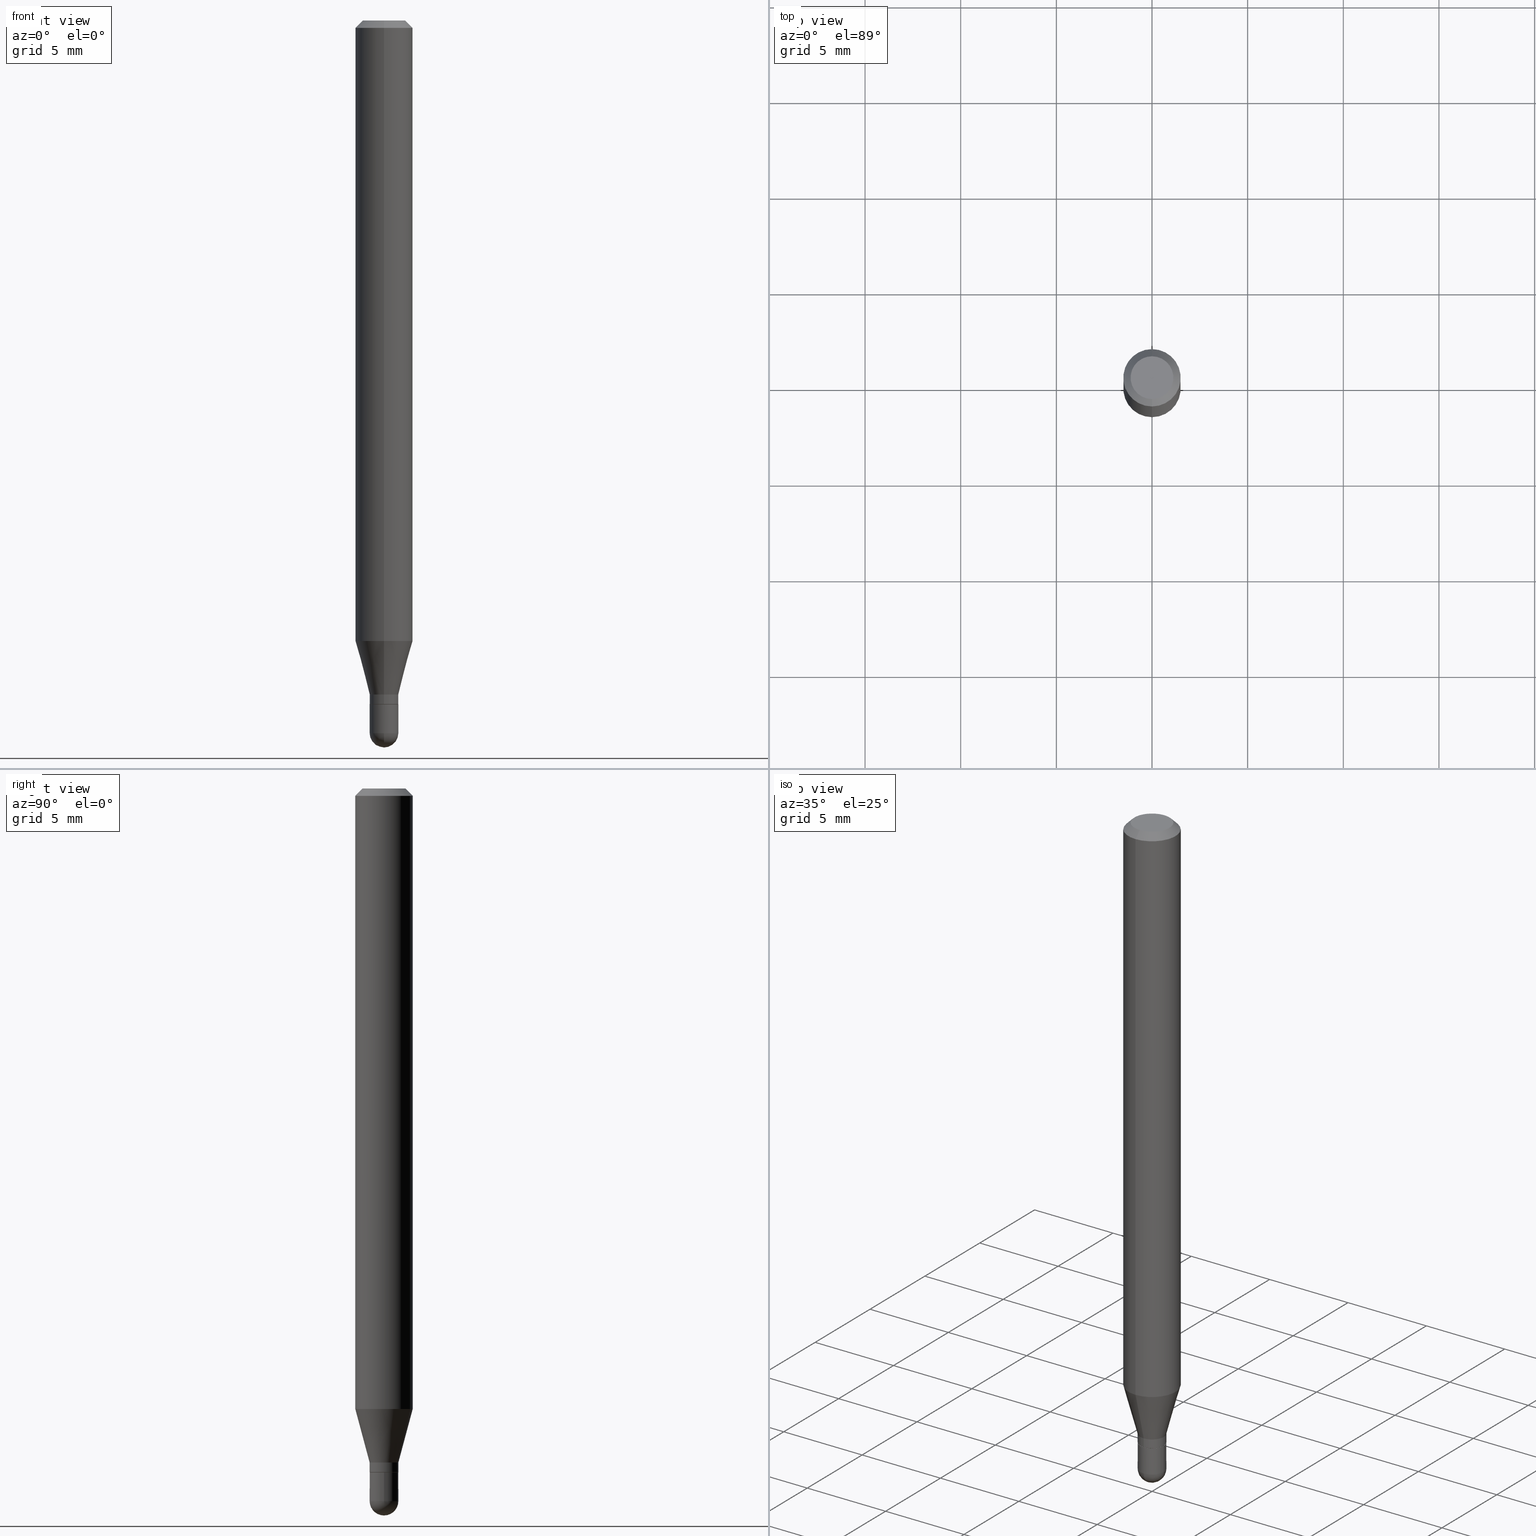
[diagram: canonical four-view strip — front | top / right | iso, engineering-drawing reading convention]
A machine part, canonical four-view strip (front | top / right | iso — engineering-drawing reading convention). The complete STEP part file that produces these views, byte-faithful:
ISO-10303-21;
HEADER;
FILE_DESCRIPTION (( 'STEP AP203' ),
    '1' );
FILE_NAME ('01932.STEP',
    '2024-03-07T19:45:25',
    ( '' ),
    ( '' ),
    'SwSTEP 2.0',
    'SolidWorks 2023',
    '' );
FILE_SCHEMA (( 'CONFIG_CONTROL_DESIGN' ));
ENDSEC;

DATA;
#1 = DATE_TIME_ROLE ( 'creation_date' ) ;
#2 = PERSON_AND_ORGANIZATION ( #319, #28 ) ;
#3 = VERTEX_POINT ( 'NONE', #371 ) ;
#4 = VECTOR ( 'NONE', #365, 39.37007874015748143 ) ;
#5 = AXIS2_PLACEMENT_3D ( 'NONE', #303, #57, #133 ) ;
#6 = CARTESIAN_POINT ( 'NONE',  ( 3.442033987779433940E-29, -4.914207509454372807E-15, -1.407499999999999973 ) ) ;
#7 = CARTESIAN_POINT ( 'NONE',  ( 3.440811240359264358E-29, -4.912461787426147857E-15, -1.407000000000000028 ) ) ;
#8 = VERTEX_POINT ( 'NONE', #331 ) ;
#9 = DIRECTION ( 'NONE',  ( -6.982962677686266711E-15, -1.000000000000000000, 0.000000000000000000 ) ) ;
#10 = EDGE_CURVE ( 'NONE', #63, #102, #233, .T. ) ;
#11 = VECTOR ( 'NONE', #132, 39.37007874015748143 ) ;
#12 = AXIS2_PLACEMENT_3D ( 'NONE', #494, #499, #173 ) ;
#13 = CARTESIAN_POINT ( 'NONE',  ( -4.123439461173429220E-16, -0.05905000000000448085, -1.277004501176717932 ) ) ;
#14 = FACE_OUTER_BOUND ( 'NONE', #291, .T. ) ;
#15 = ORIENTED_EDGE ( 'NONE', *, *, #284, .F. ) ;
#16 = ORIENTED_EDGE ( 'NONE', *, *, #22, .F. ) ;
#17 = EDGE_CURVE ( 'NONE', #411, #3, #416, .T. ) ;
#18 = FACE_OUTER_BOUND ( 'NONE', #256, .T. ) ;
#19 = VERTEX_POINT ( 'NONE', #508 ) ;
#20 = FACE_OUTER_BOUND ( 'NONE', #80, .T. ) ;
#21 = ORIENTED_EDGE ( 'NONE', *, *, #466, .F. ) ;
#22 = EDGE_CURVE ( 'NONE', #411, #115, #310, .T. ) ;
#23 = DIRECTION ( 'NONE',  ( -2.445494840340628383E-29, 3.491444056450709535E-15, 1.000000000000000000 ) ) ;
#24 = EDGE_CURVE ( 'NONE', #8, #175, #275, .T. ) ;
#25 = ORIENTED_EDGE ( 'NONE', *, *, #382, .F. ) ;
#26 = DIRECTION ( 'NONE',  ( -2.445494840340628103E-29, 3.491444056450709141E-15, 1.000000000000000000 ) ) ;
#27 = AXIS2_PLACEMENT_3D ( 'NONE', #52, #199, #84 ) ;
#28 = ORGANIZATION ( 'UNSPECIFIED', 'UNSPECIFIED', '' ) ;
#29 = MANIFOLD_SOLID_BREP ( 'Body-Move/Copy2[2]', #208 ) ;
#30 = VERTEX_POINT ( 'NONE', #482 ) ;
#31 = DIRECTION ( 'NONE',  ( -2.445494840340628383E-29, 3.491444056450709141E-15, 1.000000000000000000 ) ) ;
#32 = EDGE_LOOP ( 'NONE', ( #393, #201, #89, #343 ) ) ;
#33 = DATE_AND_TIME ( #228, #391 ) ;
#34 = PRODUCT_DEFINITION ( 'UNKNOWN', '', #251, #361 ) ;
#35 = DIRECTION ( 'NONE',  ( -4.937700262164674260E-15, -0.7071067811865632269, 0.7071067811865319186 ) ) ;
#36 = FACE_OUTER_BOUND ( 'NONE', #158, .T. ) ;
#37 = AXIS2_PLACEMENT_3D ( 'NONE', #205, #418, #248 ) ;
#38 = APPLICATION_PROTOCOL_DEFINITION ( 'international standard', 'config_control_design', 1994, #423 ) ;
#39 = MECHANICAL_CONTEXT ( 'NONE', #136, 'mechanical' ) ;
#40 = CARTESIAN_POINT ( 'NONE',  ( -0.02954999999999999988, 2.099653784171096041E-16, -1.453545319170324550E-30 ) ) ;
#41 = APPROVAL_ROLE ( '' ) ;
#42 = CIRCLE ( 'NONE', #161, 0.02904999999999999943 ) ;
#43 = DIRECTION ( 'NONE',  ( -2.445494840340628383E-29, 3.491444056450709141E-15, 1.000000000000000000 ) ) ;
#44 = DIRECTION ( 'NONE',  ( -2.445468806185136597E-29, 3.491481338843145583E-15, 1.000000000000000000 ) ) ;
#45 = ORIENTED_EDGE ( 'NONE', *, *, #392, .F. ) ;
#46 = DIRECTION ( 'NONE',  ( -2.445494840340628383E-29, 3.491444056450709141E-15, 1.000000000000000000 ) ) ;
#47 = ORIENTED_EDGE ( 'NONE', *, *, #143, .T. ) ;
#48 = FACE_OUTER_BOUND ( 'NONE', #258, .T. ) ;
#49 = CYLINDRICAL_SURFACE ( 'NONE', #66, 0.02954999999999992355 ) ;
#50 = DIRECTION ( 'NONE',  ( -2.445494840340628383E-29, 3.491444056450709535E-15, 1.000000000000000000 ) ) ;
#51 = CYLINDRICAL_SURFACE ( 'NONE', #277, 0.05904999999999999832 ) ;
#52 = CARTESIAN_POINT ( 'NONE',  ( 3.583875261326287467E-29, -5.124050788771894996E-15, -1.466550000000000020 ) ) ;
#53 = CARTESIAN_POINT ( 'NONE',  ( 3.440811240359264358E-29, -4.912461787426147857E-15, -1.407000000000000028 ) ) ;
#54 = VERTEX_POINT ( 'NONE', #313 ) ;
#55 = PLANE ( 'NONE',  #234 ) ;
#56 = CIRCLE ( 'NONE', #436, 0.05904999999999999832 ) ;
#57 = DIRECTION ( 'NONE',  ( -2.445494840340628383E-29, 3.491444056450709535E-15, 1.000000000000000000 ) ) ;
#58 = ADVANCED_FACE ( 'NONE', ( #236 ), #179, .T. ) ;
#59 = AXIS2_PLACEMENT_3D ( 'NONE', #504, #272, #507 ) ;
#60 = AXIS2_PLACEMENT_3D ( 'NONE', #172, #23, #344 ) ;
#61 = CARTESIAN_POINT ( 'NONE',  ( 3.586402277710811162E-29, -5.120431957480414460E-15, -1.466549999999999576 ) ) ;
#62 = DATE_AND_TIME ( #476, #242 ) ;
#63 = VERTEX_POINT ( 'NONE', #479 ) ;
#64 = EDGE_CURVE ( 'NONE', #19, #63, #112, .T. ) ;
#65 = CARTESIAN_POINT ( 'NONE',  ( 4.195754854663705544E-16, 0.05904999999999994975, -0.01500000000000023016 ) ) ;
#66 = AXIS2_PLACEMENT_3D ( 'NONE', #446, #160, #81 ) ;
#67 = EDGE_LOOP ( 'NONE', ( #79, #374 ) ) ;
#68 = AXIS2_PLACEMENT_3D ( 'NONE', #462, #496, #341 ) ;
#69 = PERSON_AND_ORGANIZATION_ROLE ( 'design_supplier' ) ;
#70 = ORIENTED_EDGE ( 'NONE', *, *, #282, .T. ) ;
#71 = DIRECTION ( 'NONE',  ( -6.982962677686265922E-15, -1.000000000000000000, 0.000000000000000000 ) ) ;
#72 = PERSON_AND_ORGANIZATION ( #319, #28 ) ;
#73 = FACE_OUTER_BOUND ( 'NONE', #349, .T. ) ;
#74 = DIRECTION ( 'NONE',  ( -2.445468806185136877E-29, 3.491481338843145188E-15, 1.000000000000000000 ) ) ;
#75 = DIRECTION ( 'NONE',  ( -6.982962677686266711E-15, -1.000000000000000000, 0.000000000000000000 ) ) ;
#76 = CONICAL_SURFACE ( 'NONE', #497, 0.02954999999999992355, 0.2617993877991506291 ) ;
#77 = DIRECTION ( 'NONE',  ( -1.000000000000000000, 6.982962677686265922E-15, -4.876176775795935793E-29 ) ) ;
#78 = LOCAL_TIME ( 14, 45, 25.00000000000000000, #398 ) ;
#79 = ORIENTED_EDGE ( 'NONE', *, *, #332, .T. ) ;
#80 = EDGE_LOOP ( 'NONE', ( #351, #82, #488, #15 ) ) ;
#81 = DIRECTION ( 'NONE',  ( -6.982962677686265922E-15, -1.000000000000000000, 3.491444056450709535E-15 ) ) ;
#82 = ORIENTED_EDGE ( 'NONE', *, *, #392, .T. ) ;
#83 = EDGE_LOOP ( 'NONE', ( #384, #99, #380, #16, #450 ) ) ;
#84 = DIRECTION ( 'NONE',  ( -6.982962677686265922E-15, -1.000000000000000000, 0.000000000000000000 ) ) ;
#85 = EDGE_LOOP ( 'NONE', ( #96, #167, #326, #299 ) ) ;
#86 = DIRECTION ( 'NONE',  ( -6.982962677686265922E-15, -1.000000000000000000, 0.000000000000000000 ) ) ;
#87 = DIRECTION ( 'NONE',  ( 1.000000000000000000, -6.982962677686261977E-15, 0.000000000000000000 ) ) ;
#88 = EDGE_CURVE ( 'NONE', #111, #8, #477, .T. ) ;
#89 = ORIENTED_EDGE ( 'NONE', *, *, #24, .T. ) ;
#90 = AXIS2_PLACEMENT_3D ( 'NONE', #247, #512, #146 ) ;
#91 = SECURITY_CLASSIFICATION ( '', '', #430 ) ;
#92 = DIRECTION ( 'NONE',  ( -2.445494840340628383E-29, 3.491444056450709535E-15, 1.000000000000000000 ) ) ;
#93 = ORIENTED_EDGE ( 'NONE', *, *, #108, .T. ) ;
#94 = EDGE_CURVE ( 'NONE', #115, #493, #468, .T. ) ;
#95 = CARTESIAN_POINT ( 'NONE',  ( -4.123439461173739834E-16, -0.05904999999999999832, 2.061697715334143998E-16 ) ) ;
#96 = ORIENTED_EDGE ( 'NONE', *, *, #202, .F. ) ;
#97 = DIRECTION ( 'NONE',  ( 6.982962677686265922E-15, 1.000000000000000000, -3.491444056450709141E-15 ) ) ;
#98 = CIRCLE ( 'NONE', #37, 0.02954999999999999988 ) ;
#99 = ORIENTED_EDGE ( 'NONE', *, *, #198, .T. ) ;
#100 = EDGE_CURVE ( 'NONE', #368, #102, #141, .T. ) ;
#101 = DIRECTION ( 'NONE',  ( -2.445494840340628383E-29, 3.491444056450709141E-15, 1.000000000000000000 ) ) ;
#102 = VERTEX_POINT ( 'NONE', #110 ) ;
#103 = DIRECTION ( 'NONE',  ( -6.982962677686265922E-15, -1.000000000000000000, 3.491444056450709535E-15 ) ) ;
#104 = CARTESIAN_POINT ( 'NONE',  ( 3.392145893036484860E-29, -4.842982050702778120E-15, -1.387099999999999778 ) ) ;
#105 = APPROVAL_PERSON_ORGANIZATION ( #150, #281, #148 ) ;
#106 = DATE_AND_TIME ( #440, #194 ) ;
#107 = DIRECTION ( 'NONE',  ( -2.445494840340628383E-29, 3.491444056450709535E-15, 1.000000000000000000 ) ) ;
#108 = EDGE_CURVE ( 'NONE', #493, #115, #422, .T. ) ;
#109 = ADVANCED_FACE ( 'NONE', ( #73 ), #408, .T. ) ;
#110 = CARTESIAN_POINT ( 'NONE',  ( -2.063465471255949252E-16, -0.02955000000000493343, -1.407000000000000028 ) ) ;
#111 = VERTEX_POINT ( 'NONE', #359 ) ;
#112 = LINE ( 'NONE', #469, #4 ) ;
#113 = APPLICATION_PROTOCOL_DEFINITION ( 'international standard', 'config_control_design', 1994, #136 ) ;
#114 = AXIS2_PLACEMENT_3D ( 'NONE', #165, #296, #149 ) ;
#115 = VERTEX_POINT ( 'NONE', #147 ) ;
#116 = APPROVAL_STATUS ( 'not_yet_approved' ) ;
#117 = ADVANCED_FACE ( 'NONE', ( #36 ), #76, .T. ) ;
#118 = DIRECTION ( 'NONE',  ( 1.000000000000000000, -6.982962677686265922E-15, 4.883557194083112340E-29 ) ) ;
#119 = ORIENTED_EDGE ( 'NONE', *, *, #352, .F. ) ;
#120 = CARTESIAN_POINT ( 'NONE',  ( 3.668242260510947899E-31, -5.237166084676072364E-17, -0.01500000000000002373 ) ) ;
#121 = VECTOR ( 'NONE', #415, 39.37007874015748143 ) ;
#122 = AXIS2_PLACEMENT_3D ( 'NONE', #486, #377, #123 ) ;
#123 = DIRECTION ( 'NONE',  ( -6.982962677686265922E-15, -1.000000000000000000, 4.626330217890369336E-15 ) ) ;
#124 = DIRECTION ( 'NONE',  ( -1.000000000000000000, 6.982962677686265922E-15, -4.883557194083112340E-29 ) ) ;
#125 = LINE ( 'NONE', #442, #127 ) ;
#126 = CYLINDRICAL_SURFACE ( 'NONE', #262, 0.02954999999999999988 ) ;
#127 = VECTOR ( 'NONE', #43, 39.37007874015748143 ) ;
#128 = AXIS2_PLACEMENT_3D ( 'NONE', #190, #405, #231 ) ;
#129 = ORIENTED_EDGE ( 'NONE', *, *, #276, .F. ) ;
#130 = VERTEX_POINT ( 'NONE', #253 ) ;
#131 = DIRECTION ( 'NONE',  ( -1.807323732225332900E-15, -0.2588190451025185190, 0.9659258262890689783 ) ) ;
#132 = DIRECTION ( 'NONE',  ( -2.445468806185136877E-29, 3.491481338843145188E-15, 1.000000000000000000 ) ) ;
#133 = DIRECTION ( 'NONE',  ( -6.982962677686265922E-15, -1.000000000000000000, 0.000000000000000000 ) ) ;
#134 = CARTESIAN_POINT ( 'NONE',  ( 4.195754854663390985E-16, 0.05904999999999999832, -2.061697715334143998E-16 ) ) ;
#135 = AXIS2_PLACEMENT_3D ( 'NONE', #204, #124, #86 ) ;
#136 = APPLICATION_CONTEXT ( 'configuration controlled 3d designs of mechanical parts and assemblies' ) ;
#137 = FACE_OUTER_BOUND ( 'NONE', #67, .T. ) ;
#138 =( NAMED_UNIT ( * ) PLANE_ANGLE_UNIT ( ) SI_UNIT ( $, .RADIAN. ) );
#139 = EDGE_LOOP ( 'NONE', ( #252, #315, #460, #433 ) ) ;
#140 = PERSON_AND_ORGANIZATION_ROLE ( 'creator' ) ;
#141 = LINE ( 'NONE', #309, #250 ) ;
#142 = VECTOR ( 'NONE', #74, 39.37007874015748143 ) ;
#143 = EDGE_CURVE ( 'NONE', #54, #339, #487, .T. ) ;
#144 = AXIS2_PLACEMENT_3D ( 'NONE', #306, #502, #260 ) ;
#145 = PERSON_AND_ORGANIZATION_ROLE ( 'design_owner' ) ;
#146 = DIRECTION ( 'NONE',  ( 7.105427357601001070E-15, 1.000000000000000000, 0.000000000000000000 ) ) ;
#147 = CARTESIAN_POINT ( 'NONE',  ( 0.02954999999999999988, -5.120606531547356216E-15, -1.407499999999999973 ) ) ;
#148 = APPROVAL_ROLE ( '' ) ;
#149 = DIRECTION ( 'NONE',  ( -6.982962677686265922E-15, -1.000000000000000000, 3.491444056450709535E-15 ) ) ;
#150 = PERSON_AND_ORGANIZATION ( #319, #28 ) ;
#151 = CIRCLE ( 'NONE', #135, 0.02954999999999984722 ) ;
#152 = CALENDAR_DATE ( 2024, 7, 3 ) ;
#153 = AXIS2_PLACEMENT_3D ( 'NONE', #366, #443, #77 ) ;
#154 = ADVANCED_FACE ( 'NONE', ( #48 ), #51, .T. ) ;
#155 = ORIENTED_EDGE ( 'NONE', *, *, #397, .F. ) ;
#156 = CARTESIAN_POINT ( 'NONE',  ( 3.122907918719422036E-29, -4.458589775694255755E-15, -1.277004501176718154 ) ) ;
#157 = CC_DESIGN_PERSON_AND_ORGANIZATION_ASSIGNMENT ( #401, #145, ( #308 ) ) ;
#158 = EDGE_LOOP ( 'NONE', ( #286, #47, #445, #21 ) ) ;
#159 = EDGE_CURVE ( 'NONE', #30, #54, #287, .T. ) ;
#160 = DIRECTION ( 'NONE',  ( -2.445494840340628383E-29, 3.491444056450709535E-15, 1.000000000000000000 ) ) ;
#161 = AXIS2_PLACEMENT_3D ( 'NONE', #6, #164, #9 ) ;
#162 = CONICAL_SURFACE ( 'NONE', #68, 0.02954999999999992355, 0.2617993877991506291 ) ;
#163 = ADVANCED_FACE ( 'NONE', ( #369 ), #451, .T. ) ;
#164 = DIRECTION ( 'NONE',  ( -2.445494840340628383E-29, 3.491444056450709535E-15, 1.000000000000000000 ) ) ;
#165 = CARTESIAN_POINT ( 'NONE',  ( 0.000000000000000000, 0.000000000000000000, 0.000000000000000000 ) ) ;
#166 = CARTESIAN_POINT ( 'NONE',  ( 4.195754854663701106E-16, 0.05904999999999551580, -1.277004501176718376 ) ) ;
#167 = ORIENTED_EDGE ( 'NONE', *, *, #170, .T. ) ;
#168 = CARTESIAN_POINT ( 'NONE',  ( 3.442033987779433940E-29, -4.914207509454372807E-15, -1.407499999999999973 ) ) ;
#169 = AXIS2_PLACEMENT_3D ( 'NONE', #53, #210, #456 ) ;
#170 = EDGE_CURVE ( 'NONE', #206, #3, #316, .T. ) ;
#171 = AXIS2_PLACEMENT_3D ( 'NONE', #427, #300, #97 ) ;
#172 = CARTESIAN_POINT ( 'NONE',  ( 3.668242260510947899E-31, -5.237166084676072364E-17, -0.01500000000000002373 ) ) ;
#173 = DIRECTION ( 'NONE',  ( 6.982962677686265922E-15, 1.000000000000000000, -3.505890868245046092E-15 ) ) ;
#174 = ORIENTED_EDGE ( 'NONE', *, *, #198, .F. ) ;
#175 = VERTEX_POINT ( 'NONE', #65 ) ;
#176 = CLOSED_SHELL ( 'NONE', ( #410, #163, #192, #215, #263 ) ) ;
#177 = CARTESIAN_POINT ( 'NONE',  ( 0.000000000000000000, 0.000000000000000000, 0.000000000000000000 ) ) ;
#178 = DIRECTION ( 'NONE',  ( -6.982962677686265922E-15, -1.000000000000000000, 0.000000000000000000 ) ) ;
#179 = CONICAL_SURFACE ( 'NONE', #444, 0.05904999999999999832, 0.7853981633974483900 ) ;
#180 = CC_DESIGN_APPROVAL ( #281, ( #34 ) ) ;
#181 = FACE_OUTER_BOUND ( 'NONE', #32, .T. ) ;
#182 = DIRECTION ( 'NONE',  ( -6.982962677686265133E-15, -1.000000000000000000, 3.491444056450709535E-15 ) ) ;
#183 = APPROVAL ( #240, 'UNSPECIFIED' ) ;
#184 = DIRECTION ( 'NONE',  ( -2.445468806185136597E-29, 3.491481338843145583E-15, 1.000000000000000000 ) ) ;
#185 = ORIENTED_EDGE ( 'NONE', *, *, #352, .T. ) ;
#186 = APPROVAL_DATE_TIME ( #33, #402 ) ;
#187 = AXIS2_PLACEMENT_3D ( 'NONE', #347, #501, #271 ) ;
#188 = ORIENTED_EDGE ( 'NONE', *, *, #108, .F. ) ;
#189 = COORDINATED_UNIVERSAL_TIME_OFFSET ( 5, 0, .BEHIND. ) ;
#190 = CARTESIAN_POINT ( 'NONE',  ( 0.000000000000000000, 0.000000000000000000, 0.000000000000000000 ) ) ;
#191 = CARTESIAN_POINT ( 'NONE',  ( 3.668242260510947899E-31, -5.237166084676072364E-17, -0.01500000000000002373 ) ) ;
#192 = ADVANCED_FACE ( 'NONE', ( #357 ), #484, .F. ) ;
#193 = CONICAL_SURFACE ( 'NONE', #428, 0.02904999999999999943, 0.7853981633974739252 ) ;
#194 = LOCAL_TIME ( 14, 45, 25.00000000000000000, #350 ) ;
#195 = EDGE_LOOP ( 'NONE', ( #209, #230, #155, #129 ) ) ;
#196 = MANIFOLD_SOLID_BREP ( 'Body-Move/Copy2[1]', #176 ) ;
#197 = ORIENTED_EDGE ( 'NONE', *, *, #448, .F. ) ;
#198 = EDGE_CURVE ( 'NONE', #255, #493, #404, .T. ) ;
#199 = DIRECTION ( 'NONE',  ( 1.000000000000000000, -6.982962677686265922E-15, 4.883557194083112340E-29 ) ) ;
#200 = DIRECTION ( 'NONE',  ( -2.445494840340628383E-29, 3.491444056450709535E-15, 1.000000000000000000 ) ) ;
#201 = ORIENTED_EDGE ( 'NONE', *, *, #332, .F. ) ;
#202 = EDGE_CURVE ( 'NONE', #206, #322, #151, .T. ) ;
#203 = EDGE_CURVE ( 'NONE', #102, #63, #485, .T. ) ;
#204 = CARTESIAN_POINT ( 'NONE',  ( 3.583875261326287467E-29, -5.124050788771894996E-15, -1.466550000000000020 ) ) ;
#205 = CARTESIAN_POINT ( 'NONE',  ( 3.586402277710811162E-29, -5.120431957480414460E-15, -1.466549999999999576 ) ) ;
#206 = VERTEX_POINT ( 'NONE', #372 ) ;
#207 = ORIENTED_EDGE ( 'NONE', *, *, #88, .F. ) ;
#208 = CLOSED_SHELL ( 'NONE', ( #325, #229, #58, #413, #117, #435, #154, #447, #481, #387, #244, #109 ) ) ;
#209 = ORIENTED_EDGE ( 'NONE', *, *, #170, .F. ) ;
#210 = DIRECTION ( 'NONE',  ( -2.445494840340628383E-29, 3.491444056450709535E-15, 1.000000000000000000 ) ) ;
#211 = VECTOR ( 'NONE', #46, 39.37007874015748143 ) ;
#212 = CC_DESIGN_SECURITY_CLASSIFICATION ( #91, ( #251 ) ) ;
#213 = CARTESIAN_POINT ( 'NONE',  ( 2.099653784171429334E-16, 0.02954999999999508020, -1.387099999999999778 ) ) ;
#214 = DIRECTION ( 'NONE',  ( -2.445494840340628383E-29, 3.491444056450709535E-15, 1.000000000000000000 ) ) ;
#215 = ADVANCED_FACE ( 'NONE', ( #449 ), #409, .T. ) ;
#216 = DIRECTION ( 'NONE',  ( -2.445494840340628383E-29, 3.491444056450709535E-15, 1.000000000000000000 ) ) ;
#217 = ORIENTED_EDGE ( 'NONE', *, *, #302, .T. ) ;
#218 = ORIENTED_EDGE ( 'NONE', *, *, #159, .F. ) ;
#219 = CC_DESIGN_PERSON_AND_ORGANIZATION_ASSIGNMENT ( #72, #280, ( #34 ) ) ;
#220 = FACE_OUTER_BOUND ( 'NONE', #83, .T. ) ;
#221 = AXIS2_PLACEMENT_3D ( 'NONE', #168, #200, #75 ) ;
#222 = DIRECTION ( 'NONE',  ( -6.982962677686265922E-15, -1.000000000000000000, 3.491444056450709141E-15 ) ) ;
#223 = LENGTH_MEASURE_WITH_UNIT ( LENGTH_MEASURE( 0.02539999999999999897 ), #264 );
#224 = AXIS2_PLACEMENT_3D ( 'NONE', #261, #472, #432 ) ;
#225 = AXIS2_PLACEMENT_3D ( 'NONE', #394, #184, #385 ) ;
#226 =( CONVERSION_BASED_UNIT ( 'INCH', #223 ) LENGTH_UNIT ( ) NAMED_UNIT ( #305 ) );
#227 = EDGE_CURVE ( 'NONE', #63, #54, #125, .T. ) ;
#228 = CALENDAR_DATE ( 2024, 7, 3 ) ;
#229 = ADVANCED_FACE ( 'NONE', ( #18 ), #297, .T. ) ;
#230 = ORIENTED_EDGE ( 'NONE', *, *, #202, .T. ) ;
#231 = DIRECTION ( 'NONE',  ( 1.000000000000000000, 0.000000000000000000, 0.000000000000000000 ) ) ;
#232 = CC_DESIGN_DATE_AND_TIME_ASSIGNMENT ( #318, #312, ( #91 ) ) ;
#233 = CIRCLE ( 'NONE', #354, 0.02954999999999992355 ) ;
#234 = AXIS2_PLACEMENT_3D ( 'NONE', #421, #26, #222 ) ;
#235 = PERSON_AND_ORGANIZATION ( #319, #28 ) ;
#236 = FACE_OUTER_BOUND ( 'NONE', #337, .T. ) ;
#237 = APPROVAL_DATE_TIME ( #360, #281 ) ;
#238 = DIRECTION ( 'NONE',  ( 6.982962677686265922E-15, 1.000000000000000000, -3.505890868245046092E-15 ) ) ;
#239 = PRODUCT_RELATED_PRODUCT_CATEGORY ( 'detail', '', ( #308 ) ) ;
#240 = APPROVAL_STATUS ( 'not_yet_approved' ) ;
#241 = EDGE_LOOP ( 'NONE', ( #471, #491, #480, #259 ) ) ;
#242 = LOCAL_TIME ( 14, 45, 25.00000000000000000, #314 ) ;
#243 = DIRECTION ( 'NONE',  ( -6.982962677686266711E-15, -1.000000000000000000, 0.000000000000000000 ) ) ;
#244 = ADVANCED_FACE ( 'NONE', ( #285 ), #193, .T. ) ;
#245 = CARTESIAN_POINT ( 'NONE',  ( 5.835900805560660553E-46, -8.331942004331762015E-32, -2.386388517077300107E-17 ) ) ;
#246 = ORIENTED_EDGE ( 'NONE', *, *, #203, .T. ) ;
#247 = CARTESIAN_POINT ( 'NONE',  ( 3.583875261326287467E-29, -5.124050788771894996E-15, -1.466550000000000020 ) ) ;
#248 = DIRECTION ( 'NONE',  ( 1.000000000000000000, -6.982962677686261977E-15, 0.000000000000000000 ) ) ;
#249 = DIRECTION ( 'NONE',  ( -2.445494840340628383E-29, 3.491444056450709535E-15, 1.000000000000000000 ) ) ;
#250 = VECTOR ( 'NONE', #35, 39.37007874015748143 ) ;
#251 = PRODUCT_DEFINITION_FORMATION_WITH_SPECIFIED_SOURCE ( 'ANY', '', #308, .NOT_KNOWN. ) ;
#252 = ORIENTED_EDGE ( 'NONE', *, *, #355, .T. ) ;
#253 = CARTESIAN_POINT ( 'NONE',  ( -4.123439461173736383E-16, -0.05905000000000005383, -0.01499999999999981730 ) ) ;
#254 = DIRECTION ( 'NONE',  ( -6.982962677686265922E-15, -1.000000000000000000, 3.505890868245046092E-15 ) ) ;
#255 = VERTEX_POINT ( 'NONE', #489 ) ;
#256 = EDGE_LOOP ( 'NONE', ( #70, #320, #424, #420 ) ) ;
#257 = FACE_OUTER_BOUND ( 'NONE', #396, .T. ) ;
#258 = EDGE_LOOP ( 'NONE', ( #197, #336, #292, #25 ) ) ;
#259 = ORIENTED_EDGE ( 'NONE', *, *, #10, .F. ) ;
#260 = DIRECTION ( 'NONE',  ( -6.982962677686266711E-15, -1.000000000000000000, 0.000000000000000000 ) ) ;
#261 = CARTESIAN_POINT ( 'NONE',  ( 3.441997344705579782E-29, -4.914259984421726606E-15, -1.407499999999999973 ) ) ;
#262 = AXIS2_PLACEMENT_3D ( 'NONE', #407, #340, #293 ) ;
#263 = ADVANCED_FACE ( 'NONE', ( #14 ), #126, .T. ) ;
#264 =( LENGTH_UNIT ( ) NAMED_UNIT ( * ) SI_UNIT ( $, .METRE. ) );
#265 = ORIENTED_EDGE ( 'NONE', *, *, #269, .T. ) ;
#266 = EDGE_LOOP ( 'NONE', ( #246, #333, #218, #119 ) ) ;
#267 = LINE ( 'NONE', #95, #500 ) ;
#268 = PLANE ( 'NONE',  #171 ) ;
#269 = EDGE_CURVE ( 'NONE', #111, #130, #295, .T. ) ;
#270 = AXIS2_PLACEMENT_3D ( 'NONE', #483, #44, #87 ) ;
#271 = DIRECTION ( 'NONE',  ( 1.000000000000000000, -6.982962677686261977E-15, 0.000000000000000000 ) ) ;
#272 = DIRECTION ( 'NONE',  ( -2.445468806185136597E-29, 3.491481338843145583E-15, 1.000000000000000000 ) ) ;
#273 = COORDINATED_UNIVERSAL_TIME_OFFSET ( 5, 0, .BEHIND. ) ;
#274 = DIRECTION ( 'NONE',  ( -6.982962677686265922E-15, -1.000000000000000000, 0.000000000000000000 ) ) ;
#275 = LINE ( 'NONE', #367, #390 ) ;
#276 = EDGE_CURVE ( 'NONE', #3, #255, #304, .T. ) ;
#277 = AXIS2_PLACEMENT_3D ( 'NONE', #441, #506, #503 ) ;
#278 = VECTOR ( 'NONE', #131, 39.37007874015748854 ) ;
#279 = CALENDAR_DATE ( 2024, 7, 3 ) ;
#280 = PERSON_AND_ORGANIZATION_ROLE ( 'creator' ) ;
#281 = APPROVAL ( #434, 'UNSPECIFIED' ) ;
#282 = EDGE_CURVE ( 'NONE', #368, #19, #42, .T. ) ;
#283 = ORIENTED_EDGE ( 'NONE', *, *, #397, .T. ) ;
#284 = EDGE_CURVE ( 'NONE', #339, #364, #56, .T. ) ;
#285 = FACE_OUTER_BOUND ( 'NONE', #241, .T. ) ;
#286 = ORIENTED_EDGE ( 'NONE', *, *, #159, .T. ) ;
#287 = CIRCLE ( 'NONE', #399, 0.02954999999999992355 ) ;
#288 = ORIENTED_EDGE ( 'NONE', *, *, #10, .T. ) ;
#289 = FACE_OUTER_BOUND ( 'NONE', #266, .T. ) ;
#290 = UNCERTAINTY_MEASURE_WITH_UNIT (LENGTH_MEASURE( 1.000000000000000082E-05 ), #226, 'distance_accuracy_value', 'NONE');
#291 = EDGE_LOOP ( 'NONE', ( #174, #283, #509, #426, #188 ) ) ;
#292 = ORIENTED_EDGE ( 'NONE', *, *, #378, .T. ) ;
#293 = DIRECTION ( 'NONE',  ( 1.000000000000000000, -6.982962677686266711E-15, 4.876176775795935793E-29 ) ) ;
#294 = EDGE_CURVE ( 'NONE', #322, #411, #98, .T. ) ;
#295 = LINE ( 'NONE', #370, #511 ) ;
#296 = DIRECTION ( 'NONE',  ( -2.445494840340628383E-29, 3.491444056450709535E-15, 1.000000000000000000 ) ) ;
#297 = CONICAL_SURFACE ( 'NONE', #221, 0.02904999999999999943, 0.7853981633974739252 ) ;
#298 = CARTESIAN_POINT ( 'NONE',  ( 3.442033987779433940E-29, -4.914207509454372807E-15, -1.407499999999999973 ) ) ;
#299 = ORIENTED_EDGE ( 'NONE', *, *, #294, .F. ) ;
#300 = DIRECTION ( 'NONE',  ( 2.445494840340628103E-29, -3.491444056450709141E-15, -1.000000000000000000 ) ) ;
#301 = LINE ( 'NONE', #134, #376 ) ;
#302 = EDGE_CURVE ( 'NONE', #130, #175, #338, .T. ) ;
#303 = CARTESIAN_POINT ( 'NONE',  ( 3.392145893036484860E-29, -4.842982050702778120E-15, -1.387099999999999778 ) ) ;
#304 = CIRCLE ( 'NONE', #270, 0.02954999999999999988 ) ;
#305 = DIMENSIONAL_EXPONENTS ( 1.000000000000000000, 0.000000000000000000, 0.000000000000000000, 0.000000000000000000, 0.000000000000000000, 0.000000000000000000, 0.000000000000000000 ) ;
#306 = CARTESIAN_POINT ( 'NONE',  ( 3.442033987779433940E-29, -4.914207509454372807E-15, -1.407499999999999973 ) ) ;
#307 =( NAMED_UNIT ( * ) SI_UNIT ( $, .STERADIAN. ) SOLID_ANGLE_UNIT ( ) );
#308 = PRODUCT ( '01932', '01932', '', ( #39 ) ) ;
#309 = CARTESIAN_POINT ( 'NONE',  ( -2.028550657867515976E-16, -0.02905000000000491217, -1.407499999999999973 ) ) ;
#310 = LINE ( 'NONE', #473, #142 ) ;
#311 = CARTESIAN_POINT ( 'NONE',  ( 3.392145893036484860E-29, -4.842982050702778120E-15, -1.387099999999999778 ) ) ;
#312 = DATE_TIME_ROLE ( 'classification_date' ) ;
#313 = CARTESIAN_POINT ( 'NONE',  ( 3.147704319417567192E-16, 0.02954999999999508020, -1.387099999999999778 ) ) ;
#314 = COORDINATED_UNIVERSAL_TIME_OFFSET ( 5, 0, .BEHIND. ) ;
#315 = ORIENTED_EDGE ( 'NONE', *, *, #448, .T. ) ;
#316 = CIRCLE ( 'NONE', #90, 0.02954999999999984722 ) ;
#317 = CC_DESIGN_APPROVAL ( #183, ( #251 ) ) ;
#318 = DATE_AND_TIME ( #152, #78 ) ;
#319 = PERSON ( 'UNSPECIFIED', 'UNSPECIFIED', 'UNSPECIFIED', ('UNSPECIFIED'), ('UNSPECIFIED'), ('UNSPECIFIED') ) ;
#320 = ORIENTED_EDGE ( 'NONE', *, *, #64, .T. ) ;
#321 = DIRECTION ( 'NONE',  ( 4.937700262164548042E-15, 0.7071067811865451302, -0.7071067811865499042 ) ) ;
#322 = VERTEX_POINT ( 'NONE', #414 ) ;
#323 = DIRECTION ( 'NONE',  ( -6.982962677686265922E-15, -1.000000000000000000, 4.626330217890369336E-15 ) ) ;
#324 = CC_DESIGN_PERSON_AND_ORGANIZATION_ASSIGNMENT ( #356, #69, ( #251 ) ) ;
#325 = ADVANCED_FACE ( 'NONE', ( #289 ), #49, .T. ) ;
#326 = ORIENTED_EDGE ( 'NONE', *, *, #17, .F. ) ;
#327 = AXIS2_PLACEMENT_3D ( 'NONE', #120, #92, #254 ) ;
#328 = AXIS2_PLACEMENT_3D ( 'NONE', #61, #492, #464 ) ;
#329 = LINE ( 'NONE', #419, #211 ) ;
#330 = ADVANCED_BREP_SHAPE_REPRESENTATION ( '01932', ( #196, #29, #128 ), #463 ) ;
#331 = CARTESIAN_POINT ( 'NONE',  ( 3.599717260347271507E-16, 0.04404999999999999888, -1.776619958574267697E-16 ) ) ;
#332 = EDGE_CURVE ( 'NONE', #8, #111, #461, .T. ) ;
#333 = ORIENTED_EDGE ( 'NONE', *, *, #227, .T. ) ;
#334 = CARTESIAN_POINT ( 'NONE',  ( -2.028550657867515976E-16, -0.02905000000000491217, -1.407499999999999973 ) ) ;
#335 = CC_DESIGN_PERSON_AND_ORGANIZATION_ASSIGNMENT ( #2, #467, ( #91 ) ) ;
#336 = ORIENTED_EDGE ( 'NONE', *, *, #284, .T. ) ;
#337 = EDGE_LOOP ( 'NONE', ( #207, #265, #217, #475 ) ) ;
#338 = CIRCLE ( 'NONE', #327, 0.05904999999999999832 ) ;
#339 = VERTEX_POINT ( 'NONE', #166 ) ;
#340 = DIRECTION ( 'NONE',  ( -2.445468806185136597E-29, 3.491481338843145583E-15, 1.000000000000000000 ) ) ;
#341 = DIRECTION ( 'NONE',  ( -6.982962677686265922E-15, -1.000000000000000000, 0.000000000000000000 ) ) ;
#342 = FACE_OUTER_BOUND ( 'NONE', #139, .T. ) ;
#343 = ORIENTED_EDGE ( 'NONE', *, *, #382, .T. ) ;
#344 = DIRECTION ( 'NONE',  ( -6.982962677686265922E-15, -1.000000000000000000, 3.505890868245046092E-15 ) ) ;
#345 = AXIS2_PLACEMENT_3D ( 'NONE', #510, #431, #182 ) ;
#346 = APPROVAL_PERSON_ORGANIZATION ( #235, #183, #505 ) ;
#347 = CARTESIAN_POINT ( 'NONE',  ( 3.586402277710811162E-29, -5.120431957480414460E-15, -1.466549999999999576 ) ) ;
#348 = CARTESIAN_POINT ( 'NONE',  ( 0.02954999999999999988, -5.223692518076699355E-15, -1.466549999999999576 ) ) ;
#349 = EDGE_LOOP ( 'NONE', ( #412, #288, #185, #45 ) ) ;
#350 = COORDINATED_UNIVERSAL_TIME_OFFSET ( 5, 0, .BEHIND. ) ;
#351 = ORIENTED_EDGE ( 'NONE', *, *, #143, .F. ) ;
#352 = EDGE_CURVE ( 'NONE', #102, #30, #329, .T. ) ;
#353 = PRODUCT_DEFINITION_SHAPE ( 'NONE', 'NONE',  #34 ) ;
#354 = AXIS2_PLACEMENT_3D ( 'NONE', #7, #50, #178 ) ;
#355 = EDGE_CURVE ( 'NONE', #364, #339, #470, .T. ) ;
#356 = PERSON_AND_ORGANIZATION ( #319, #28 ) ;
#357 = FACE_OUTER_BOUND ( 'NONE', #383, .T. ) ;
#358 = CC_DESIGN_DATE_AND_TIME_ASSIGNMENT ( #106, #1, ( #34 ) ) ;
#359 = CARTESIAN_POINT ( 'NONE',  ( -3.536586717851222218E-16, -0.04404999999999999888, 1.299342255158807429E-16 ) ) ;
#360 = DATE_AND_TIME ( #279, #454 ) ;
#361 = DESIGN_CONTEXT ( 'detailed design', #423, 'design' ) ;
#362 = AXIS2_PLACEMENT_3D ( 'NONE', #490, #118, #381 ) ;
#363 = CIRCLE ( 'NONE', #144, 0.02904999999999999943 ) ;
#364 = VERTEX_POINT ( 'NONE', #13 ) ;
#365 = DIRECTION ( 'NONE',  ( 5.024295867788190974E-15, 0.7071067811865681119, 0.7071067811865270336 ) ) ;
#366 = CARTESIAN_POINT ( 'NONE',  ( 2.063465471256636054E-16, 0.02954999999999508714, -1.407499999999999973 ) ) ;
#367 = CARTESIAN_POINT ( 'NONE',  ( 4.123439461173743285E-16, 0.05904999999999994975, -0.01500000000000023016 ) ) ;
#368 = VERTEX_POINT ( 'NONE', #334 ) ;
#369 = FACE_OUTER_BOUND ( 'NONE', #85, .T. ) ;
#370 = CARTESIAN_POINT ( 'NONE',  ( -4.051124067684085231E-16, -0.05905000000000005383, -0.01499999999999981730 ) ) ;
#371 = CARTESIAN_POINT ( 'NONE',  ( 2.099653784171448809E-16, 0.02954999999999480265, -1.466549999999999576 ) ) ;
#372 = CARTESIAN_POINT ( 'NONE',  ( 3.654875356356795165E-29, -5.229033477980449675E-15, -1.496099999999999985 ) ) ;
#373 = ORIENTED_EDGE ( 'NONE', *, *, #282, .F. ) ;
#374 = ORIENTED_EDGE ( 'NONE', *, *, #88, .T. ) ;
#375 = AXIS2_PLACEMENT_3D ( 'NONE', #245, #214, #379 ) ;
#376 = VECTOR ( 'NONE', #101, 39.37007874015748143 ) ;
#377 = DIRECTION ( 'NONE',  ( -2.445494840340628383E-29, 3.491444056450709535E-15, 1.000000000000000000 ) ) ;
#378 = EDGE_CURVE ( 'NONE', #364, #130, #267, .T. ) ;
#379 = DIRECTION ( 'NONE',  ( -6.982962677686265133E-15, -1.000000000000000000, 3.491444056450709535E-15 ) ) ;
#380 = ORIENTED_EDGE ( 'NONE', *, *, #94, .F. ) ;
#381 = DIRECTION ( 'NONE',  ( -6.982962677686265922E-15, -1.000000000000000000, 0.000000000000000000 ) ) ;
#382 = EDGE_CURVE ( 'NONE', #175, #130, #455, .T. ) ;
#383 = EDGE_LOOP ( 'NONE', ( #498, #93 ) ) ;
#384 = ORIENTED_EDGE ( 'NONE', *, *, #276, .T. ) ;
#385 = DIRECTION ( 'NONE',  ( 1.000000000000000000, -6.982962677686266711E-15, 4.876176775795935793E-29 ) ) ;
#386 = CIRCLE ( 'NONE', #5, 0.02954999999999992355 ) ;
#387 = ADVANCED_FACE ( 'NONE', ( #257 ), #55, .F. ) ;
#388 = CYLINDRICAL_SURFACE ( 'NONE', #400, 0.05904999999999999832 ) ;
#389 = CYLINDRICAL_SURFACE ( 'NONE', #225, 0.02954999999999999988 ) ;
#390 = VECTOR ( 'NONE', #321, 39.37007874015748143 ) ;
#391 = LOCAL_TIME ( 14, 45, 25.00000000000000000, #273 ) ;
#392 = EDGE_CURVE ( 'NONE', #54, #30, #386, .T. ) ;
#393 = ORIENTED_EDGE ( 'NONE', *, *, #269, .F. ) ;
#394 = CARTESIAN_POINT ( 'NONE',  ( 0.000000000000000000, 0.000000000000000000, 0.000000000000000000 ) ) ;
#395 = DIRECTION ( 'NONE',  ( 2.445494840340628383E-29, -3.491444056450709535E-15, -1.000000000000000000 ) ) ;
#396 = EDGE_LOOP ( 'NONE', ( #373, #458 ) ) ;
#397 = EDGE_CURVE ( 'NONE', #255, #322, #417, .T. ) ;
#398 = COORDINATED_UNIVERSAL_TIME_OFFSET ( 5, 0, .BEHIND. ) ;
#399 = AXIS2_PLACEMENT_3D ( 'NONE', #104, #107, #274 ) ;
#400 = AXIS2_PLACEMENT_3D ( 'NONE', #177, #465, #103 ) ;
#401 = PERSON_AND_ORGANIZATION ( #319, #28 ) ;
#402 = APPROVAL ( #116, 'UNSPECIFIED' ) ;
#403 = PERSON_AND_ORGANIZATION ( #319, #28 ) ;
#404 = LINE ( 'NONE', #40, #11 ) ;
#405 = DIRECTION ( 'NONE',  ( 0.000000000000000000, 0.000000000000000000, 1.000000000000000000 ) ) ;
#406 = CC_DESIGN_APPROVAL ( #402, ( #91 ) ) ;
#407 = CARTESIAN_POINT ( 'NONE',  ( 0.000000000000000000, 0.000000000000000000, 0.000000000000000000 ) ) ;
#408 = CYLINDRICAL_SURFACE ( 'NONE', #114, 0.02954999999999992355 ) ;
#409 = SPHERICAL_SURFACE ( 'NONE', #362, 0.02954999999999984722 ) ;
#410 = ADVANCED_FACE ( 'NONE', ( #220 ), #389, .T. ) ;
#411 = VERTEX_POINT ( 'NONE', #348 ) ;
#412 = ORIENTED_EDGE ( 'NONE', *, *, #227, .F. ) ;
#413 = ADVANCED_FACE ( 'NONE', ( #342 ), #388, .T. ) ;
#414 = CARTESIAN_POINT ( 'NONE',  ( -2.063465471255927805E-16, -0.02955000000000504445, -1.466549999999999576 ) ) ;
#415 = DIRECTION ( 'NONE',  ( 1.839019923739602682E-15, 0.2588190451025252914, 0.9659258262890670910 ) ) ;
#416 = CIRCLE ( 'NONE', #187, 0.02954999999999999988 ) ;
#417 = CIRCLE ( 'NONE', #328, 0.02954999999999999988 ) ;
#418 = DIRECTION ( 'NONE',  ( -2.445468806185136597E-29, 3.491481338843145583E-15, 1.000000000000000000 ) ) ;
#419 = CARTESIAN_POINT ( 'NONE',  ( -2.063465471256286244E-16, -0.02954999999999992355, 1.031721718681181984E-16 ) ) ;
#420 = ORIENTED_EDGE ( 'NONE', *, *, #100, .F. ) ;
#421 = CARTESIAN_POINT ( 'NONE',  ( 3.442033987779433940E-29, -4.914207509454372807E-15, -1.407499999999999973 ) ) ;
#422 = CIRCLE ( 'NONE', #224, 0.02954999999999999988 ) ;
#423 = APPLICATION_CONTEXT ( 'configuration controlled 3d designs of mechanical parts and assemblies' ) ;
#424 = ORIENTED_EDGE ( 'NONE', *, *, #203, .F. ) ;
#425 = LINE ( 'NONE', #459, #278 ) ;
#426 = ORIENTED_EDGE ( 'NONE', *, *, #22, .T. ) ;
#427 = CARTESIAN_POINT ( 'NONE',  ( 3.075995059520799729E-16, 0.04404999999999999888, -1.657300532720402198E-16 ) ) ;
#428 = AXIS2_PLACEMENT_3D ( 'NONE', #298, #216, #243 ) ;
#429 = CONICAL_SURFACE ( 'NONE', #12, 0.05904999999999999832, 0.7853981633974483900 ) ;
#430 = SECURITY_CLASSIFICATION_LEVEL ( 'unclassified' ) ;
#431 = DIRECTION ( 'NONE',  ( -2.445494840340628383E-29, 3.491444056450709535E-15, 1.000000000000000000 ) ) ;
#432 = DIRECTION ( 'NONE',  ( 1.000000000000000000, -6.982962677686261977E-15, 0.000000000000000000 ) ) ;
#433 = ORIENTED_EDGE ( 'NONE', *, *, #378, .F. ) ;
#434 = APPROVAL_STATUS ( 'not_yet_approved' ) ;
#435 = ADVANCED_FACE ( 'NONE', ( #20 ), #162, .T. ) ;
#436 = AXIS2_PLACEMENT_3D ( 'NONE', #156, #249, #323 ) ;
#437 = APPROVAL_PERSON_ORGANIZATION ( #478, #402, #41 ) ;
#438 = APPROVAL_DATE_TIME ( #62, #183 ) ;
#439 = DIRECTION ( 'NONE',  ( -2.445494840340628383E-29, 3.491444056450709535E-15, 1.000000000000000000 ) ) ;
#440 = CALENDAR_DATE ( 2024, 7, 3 ) ;
#441 = CARTESIAN_POINT ( 'NONE',  ( 0.000000000000000000, 0.000000000000000000, 0.000000000000000000 ) ) ;
#442 = CARTESIAN_POINT ( 'NONE',  ( 2.099653784171090371E-16, 0.02954999999999992355, -1.031721718681181984E-16 ) ) ;
#443 = DIRECTION ( 'NONE',  ( 2.438088387897960049E-29, -3.491481338843145188E-15, -1.000000000000000000 ) ) ;
#444 = AXIS2_PLACEMENT_3D ( 'NONE', #191, #395, #238 ) ;
#445 = ORIENTED_EDGE ( 'NONE', *, *, #355, .F. ) ;
#446 = CARTESIAN_POINT ( 'NONE',  ( 0.000000000000000000, 0.000000000000000000, 0.000000000000000000 ) ) ;
#447 = ADVANCED_FACE ( 'NONE', ( #181 ), #429, .T. ) ;
#448 = EDGE_CURVE ( 'NONE', #339, #175, #301, .T. ) ;
#449 = FACE_OUTER_BOUND ( 'NONE', #195, .T. ) ;
#450 = ORIENTED_EDGE ( 'NONE', *, *, #17, .T. ) ;
#451 = SPHERICAL_SURFACE ( 'NONE', #27, 0.02954999999999984722 ) ;
#452 = CC_DESIGN_PERSON_AND_ORGANIZATION_ASSIGNMENT ( #403, #140, ( #251 ) ) ;
#453 = DIRECTION ( 'NONE',  ( -4.851104656540964275E-15, -0.7071067811865500152, -0.7071067811865450192 ) ) ;
#454 = LOCAL_TIME ( 14, 45, 25.00000000000000000, #189 ) ;
#455 = CIRCLE ( 'NONE', #60, 0.05904999999999999832 ) ;
#456 = DIRECTION ( 'NONE',  ( -6.982962677686265922E-15, -1.000000000000000000, 0.000000000000000000 ) ) ;
#457 = CARTESIAN_POINT ( 'NONE',  ( -0.02954999999999999988, -4.807380592533961176E-15, -1.407499999999999973 ) ) ;
#458 = ORIENTED_EDGE ( 'NONE', *, *, #495, .F. ) ;
#459 = CARTESIAN_POINT ( 'NONE',  ( -2.063465471255947033E-16, -0.02955000000000476690, -1.387099999999999778 ) ) ;
#460 = ORIENTED_EDGE ( 'NONE', *, *, #302, .F. ) ;
#461 = CIRCLE ( 'NONE', #375, 0.04404999999999999888 ) ;
#462 = CARTESIAN_POINT ( 'NONE',  ( 3.392145893036484860E-29, -4.842982050702778120E-15, -1.387099999999999778 ) ) ;
#463 =( GEOMETRIC_REPRESENTATION_CONTEXT ( 3 ) GLOBAL_UNCERTAINTY_ASSIGNED_CONTEXT ( ( #290 ) ) GLOBAL_UNIT_ASSIGNED_CONTEXT ( ( #226, #138, #307 ) ) REPRESENTATION_CONTEXT ( 'NONE', 'WORKASPACE' ) );
#464 = DIRECTION ( 'NONE',  ( 1.000000000000000000, -6.982962677686261977E-15, 0.000000000000000000 ) ) ;
#465 = DIRECTION ( 'NONE',  ( -2.445494840340628383E-29, 3.491444056450709535E-15, 1.000000000000000000 ) ) ;
#466 = EDGE_CURVE ( 'NONE', #30, #364, #425, .T. ) ;
#467 = PERSON_AND_ORGANIZATION_ROLE ( 'classification_officer' ) ;
#468 = CIRCLE ( 'NONE', #59, 0.02954999999999999988 ) ;
#469 = CARTESIAN_POINT ( 'NONE',  ( 2.064126647383434894E-16, 0.02904999999999508670, -1.407499999999999973 ) ) ;
#470 = CIRCLE ( 'NONE', #122, 0.05904999999999999832 ) ;
#471 = ORIENTED_EDGE ( 'NONE', *, *, #64, .F. ) ;
#472 = DIRECTION ( 'NONE',  ( -2.445468806185136597E-29, 3.491481338843145583E-15, 1.000000000000000000 ) ) ;
#473 = CARTESIAN_POINT ( 'NONE',  ( 0.02954999999999999988, -2.063465471256291914E-16, 1.440910237247699070E-30 ) ) ;
#474 = SHAPE_DEFINITION_REPRESENTATION ( #353, #330 ) ;
#475 = ORIENTED_EDGE ( 'NONE', *, *, #24, .F. ) ;
#476 = CALENDAR_DATE ( 2024, 7, 3 ) ;
#477 = CIRCLE ( 'NONE', #345, 0.04404999999999999888 ) ;
#478 = PERSON_AND_ORGANIZATION ( #319, #28 ) ;
#479 = CARTESIAN_POINT ( 'NONE',  ( 2.099653784171427362E-16, 0.02954999999999491367, -1.407000000000000028 ) ) ;
#480 = ORIENTED_EDGE ( 'NONE', *, *, #100, .T. ) ;
#481 = ADVANCED_FACE ( 'NONE', ( #137 ), #268, .F. ) ;
#482 = CARTESIAN_POINT ( 'NONE',  ( -2.063465471255947033E-16, -0.02955000000000476690, -1.387099999999999778 ) ) ;
#483 = CARTESIAN_POINT ( 'NONE',  ( 3.586402277710811162E-29, -5.120431957480414460E-15, -1.466549999999999576 ) ) ;
#484 = PLANE ( 'NONE',  #153 ) ;
#485 = CIRCLE ( 'NONE', #169, 0.02954999999999992355 ) ;
#486 = CARTESIAN_POINT ( 'NONE',  ( 3.122907918719422036E-29, -4.458589775694255755E-15, -1.277004501176718154 ) ) ;
#487 = LINE ( 'NONE', #213, #121 ) ;
#488 = ORIENTED_EDGE ( 'NONE', *, *, #466, .T. ) ;
#489 = CARTESIAN_POINT ( 'NONE',  ( -0.02954999999999999988, -4.807380592533961176E-15, -1.466549999999999576 ) ) ;
#490 = CARTESIAN_POINT ( 'NONE',  ( 3.583875261326287467E-29, -5.124050788771894996E-15, -1.466550000000000020 ) ) ;
#491 = ORIENTED_EDGE ( 'NONE', *, *, #495, .T. ) ;
#492 = DIRECTION ( 'NONE',  ( -2.445468806185136597E-29, 3.491481338843145583E-15, 1.000000000000000000 ) ) ;
#493 = VERTEX_POINT ( 'NONE', #457 ) ;
#494 = CARTESIAN_POINT ( 'NONE',  ( 3.668242260510947899E-31, -5.237166084676072364E-17, -0.01500000000000002373 ) ) ;
#495 = EDGE_CURVE ( 'NONE', #19, #368, #363, .T. ) ;
#496 = DIRECTION ( 'NONE',  ( -2.445494840340628383E-29, 3.491444056450709535E-15, 1.000000000000000000 ) ) ;
#497 = AXIS2_PLACEMENT_3D ( 'NONE', #311, #439, #71 ) ;
#498 = ORIENTED_EDGE ( 'NONE', *, *, #94, .T. ) ;
#499 = DIRECTION ( 'NONE',  ( 2.445494840340628383E-29, -3.491444056450709535E-15, -1.000000000000000000 ) ) ;
#500 = VECTOR ( 'NONE', #31, 39.37007874015748143 ) ;
#501 = DIRECTION ( 'NONE',  ( -2.445468806185136597E-29, 3.491481338843145583E-15, 1.000000000000000000 ) ) ;
#502 = DIRECTION ( 'NONE',  ( -2.445494840340628383E-29, 3.491444056450709535E-15, 1.000000000000000000 ) ) ;
#503 = DIRECTION ( 'NONE',  ( -6.982962677686265922E-15, -1.000000000000000000, 3.491444056450709535E-15 ) ) ;
#504 = CARTESIAN_POINT ( 'NONE',  ( 3.441997344705579782E-29, -4.914259984421726606E-15, -1.407499999999999973 ) ) ;
#505 = APPROVAL_ROLE ( '' ) ;
#506 = DIRECTION ( 'NONE',  ( -2.445494840340628383E-29, 3.491444056450709535E-15, 1.000000000000000000 ) ) ;
#507 = DIRECTION ( 'NONE',  ( 1.000000000000000000, -6.982962677686261977E-15, 0.000000000000000000 ) ) ;
#508 = CARTESIAN_POINT ( 'NONE',  ( 2.081890215777434702E-16, 0.02904999999999508670, -1.407499999999999973 ) ) ;
#509 = ORIENTED_EDGE ( 'NONE', *, *, #294, .T. ) ;
#510 = CARTESIAN_POINT ( 'NONE',  ( 5.835900805560660553E-46, -8.331942004331762015E-32, -2.386388517077300107E-17 ) ) ;
#511 = VECTOR ( 'NONE', #453, 39.37007874015748143 ) ;
#512 = DIRECTION ( 'NONE',  ( 1.000000000000000000, -7.105427357601001070E-15, 4.926315508542082329E-29 ) ) ;
ENDSEC;
END-ISO-10303-21;
